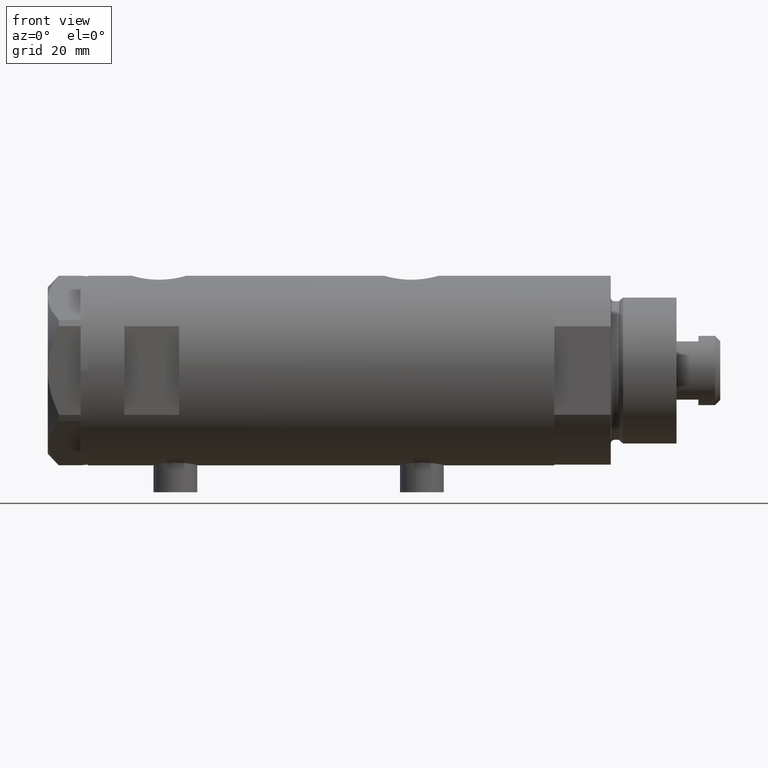
[diagram: clean part render]
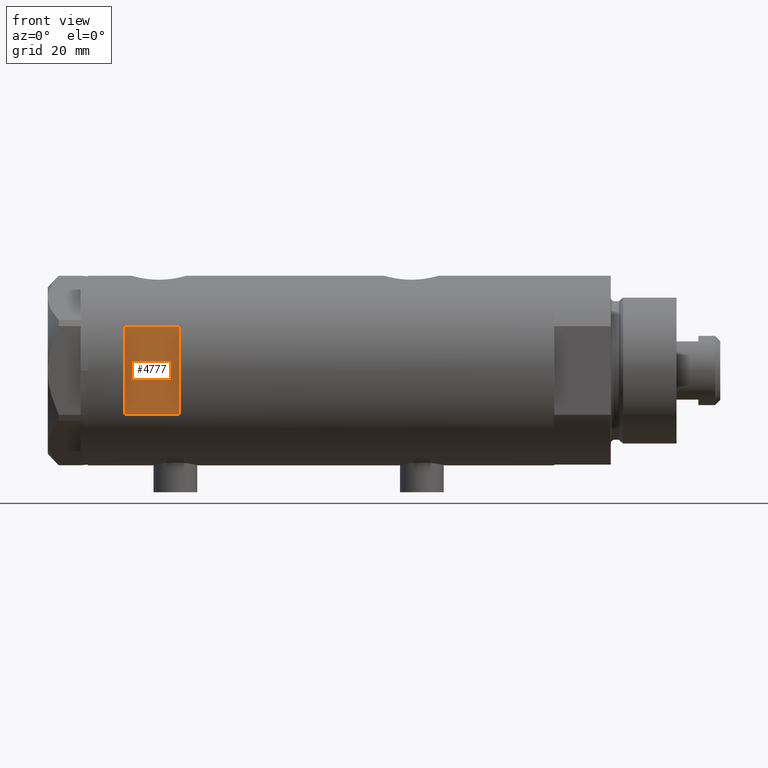
[diagram: same view with one face highlighted and labeled with its STEP entity id]
A machine part, front view. The second image highlights one B-rep face of the part: STEP entity #4777.
In plain terms, the highlighted planar face has unit normal (-0, 1, 0).
Its self-contained STEP definition (entity closure, byte-faithful):
#85 = CARTESIAN_POINT ( 'NONE',  ( -26.00000000000000355, -23.00000000000000355, 53.94999999999999574 ) ) ;
#179 = CARTESIAN_POINT ( 'NONE',  ( -26.00000000000000355, -23.00000000000000355, 38.94999999999999574 ) ) ;
#180 = ORIENTED_EDGE ( 'NONE', *, *, #2237, .T. ) ;
#182 = PLANE ( 'NONE',  #1941 ) ;
#251 = VERTEX_POINT ( 'NONE', #1510 ) ;
#347 = DIRECTION ( 'NONE',  ( -0.000000000000000000, -0.000000000000000000, -1.000000000000000000 ) ) ;
#596 = VECTOR ( 'NONE', #1705, 1000.000000000000000 ) ;
#622 = DIRECTION ( 'NONE',  ( 0.000000000000000000, 0.000000000000000000, 1.000000000000000000 ) ) ;
#700 = CARTESIAN_POINT ( 'NONE',  ( 12.12435565298214080, -23.00000000000000355, 38.94999999999999574 ) ) ;
#909 = CARTESIAN_POINT ( 'NONE',  ( -26.00000000000000355, -23.00000000000000355, 53.94999999999999574 ) ) ;
#950 = CARTESIAN_POINT ( 'NONE',  ( 12.12435565298214080, -23.00000000000000355, -63.95000000000000995 ) ) ;
#1181 = LINE ( 'NONE', #85, #2968 ) ;
#1257 = ORIENTED_EDGE ( 'NONE', *, *, #2144, .T. ) ;
#1270 = FACE_OUTER_BOUND ( 'NONE', #3830, .T. ) ;
#1510 = CARTESIAN_POINT ( 'NONE',  ( 12.12435565298214080, -23.00000000000000355, 53.94999999999999574 ) ) ;
#1570 = VERTEX_POINT ( 'NONE', #700 ) ;
#1649 = ORIENTED_EDGE ( 'NONE', *, *, #3679, .F. ) ;
#1705 = DIRECTION ( 'NONE',  ( 1.000000000000000000, -0.000000000000000000, -0.000000000000000000 ) ) ;
#1941 = AXIS2_PLACEMENT_3D ( 'NONE', #909, #2429, #2053 ) ;
#1977 = CARTESIAN_POINT ( 'NONE',  ( -12.12435565298214080, -23.00000000000000355, 53.94999999999999574 ) ) ;
#2053 = DIRECTION ( 'NONE',  ( 0.000000000000000000, -0.000000000000000000, 1.000000000000000000 ) ) ;
#2144 = EDGE_CURVE ( 'NONE', #2549, #1570, #3987, .T. ) ;
#2237 = EDGE_CURVE ( 'NONE', #2707, #2549, #2564, .T. ) ;
#2429 = DIRECTION ( 'NONE',  ( 0.000000000000000000, 1.000000000000000000, 0.000000000000000000 ) ) ;
#2549 = VERTEX_POINT ( 'NONE', #4458 ) ;
#2564 = LINE ( 'NONE', #4463, #2655 ) ;
#2655 = VECTOR ( 'NONE', #347, 1000.000000000000000 ) ;
#2707 = VERTEX_POINT ( 'NONE', #1977 ) ;
#2712 = DIRECTION ( 'NONE',  ( 1.000000000000000000, -0.000000000000000000, -0.000000000000000000 ) ) ;
#2968 = VECTOR ( 'NONE', #2712, 1000.000000000000000 ) ;
#3679 = EDGE_CURVE ( 'NONE', #2707, #251, #1181, .T. ) ;
#3830 = EDGE_LOOP ( 'NONE', ( #180, #1257, #4341, #1649 ) ) ;
#3839 = VECTOR ( 'NONE', #622, 1000.000000000000000 ) ;
#3883 = EDGE_CURVE ( 'NONE', #1570, #251, #4744, .T. ) ;
#3987 = LINE ( 'NONE', #179, #596 ) ;
#4341 = ORIENTED_EDGE ( 'NONE', *, *, #3883, .T. ) ;
#4458 = CARTESIAN_POINT ( 'NONE',  ( -12.12435565298214080, -23.00000000000000355, 38.94999999999999574 ) ) ;
#4463 = CARTESIAN_POINT ( 'NONE',  ( -12.12435565298214080, -23.00000000000000355, -63.95000000000000995 ) ) ;
#4744 = LINE ( 'NONE', #950, #3839 ) ;
#4777 = ADVANCED_FACE ( 'NONE', ( #1270 ), #182, .F. ) ;